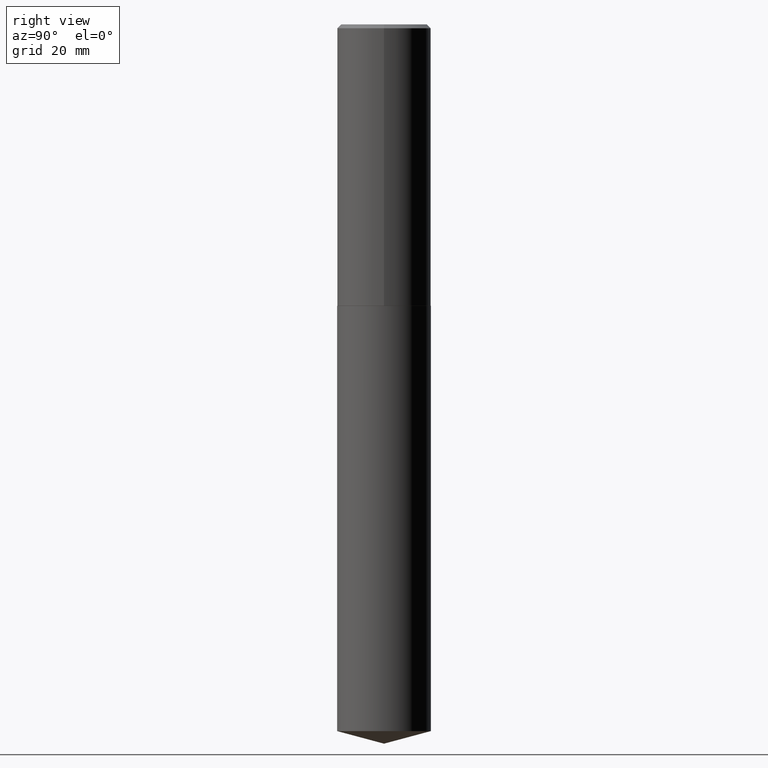
[diagram: clean part render]
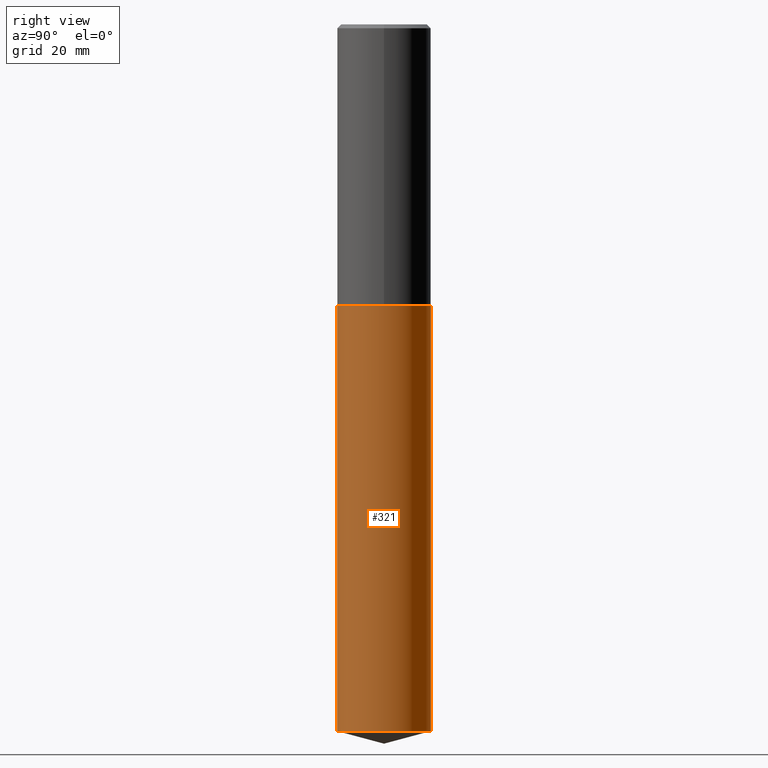
[diagram: same view with one face highlighted and labeled with its STEP entity id]
A machine part, right view. The second image highlights one B-rep face of the part: STEP entity #321.
In plain terms, the highlighted cylindrical surface (partial cylindrical patch) has radius 9.525 mm, axis along (-0, 0, 1).
Its self-contained STEP definition (entity closure, byte-faithful):
#5 = CARTESIAN_POINT ( 'NONE',  ( 1.381670510912354609E-28, -1.972378335700664578E-14, -5.649519052838330779 ) ) ;
#6 = VERTEX_POINT ( 'NONE', #344 ) ;
#7 = VERTEX_POINT ( 'NONE', #148 ) ;
#10 = EDGE_CURVE ( 'NONE', #7, #6, #211, .T. ) ;
#21 = CARTESIAN_POINT ( 'NONE',  ( -2.618611004132295191E-15, -0.3750000000000078826, -2.249999999999998224 ) ) ;
#36 = EDGE_CURVE ( 'NONE', #95, #336, #40, .T. ) ;
#40 = CIRCLE ( 'NONE', #152, 0.3750000000000000555 ) ;
#45 = AXIS2_PLACEMENT_3D ( 'NONE', #279, #247, #118 ) ;
#55 = FACE_OUTER_BOUND ( 'NONE', #159, .T. ) ;
#60 = ORIENTED_EDGE ( 'NONE', *, *, #164, .F. ) ;
#68 = ORIENTED_EDGE ( 'NONE', *, *, #36, .T. ) ;
#95 = VERTEX_POINT ( 'NONE', #284 ) ;
#118 = DIRECTION ( 'NONE',  ( -6.982962677686265922E-15, -1.000000000000000000, 3.642463991552350169E-15 ) ) ;
#122 = DIRECTION ( 'NONE',  ( -2.445757816319670673E-29, 3.491067459881057732E-15, 1.000000000000000000 ) ) ;
#133 = DIRECTION ( 'NONE',  ( -6.982962677686265922E-15, -1.000000000000000000, 2.913971193241880372E-15 ) ) ;
#135 = CARTESIAN_POINT ( 'NONE',  ( 2.664535259100513353E-15, 0.3749999999999801825, -5.649519052838331667 ) ) ;
#148 = CARTESIAN_POINT ( 'NONE',  ( -2.618611004132295191E-15, -0.3750000000000078826, -2.249999999999998224 ) ) ;
#152 = AXIS2_PLACEMENT_3D ( 'NONE', #5, #122, #133 ) ;
#159 = EDGE_LOOP ( 'NONE', ( #68, #356, #308, #60 ) ) ;
#164 = EDGE_CURVE ( 'NONE', #95, #7, #232, .T. ) ;
#170 = DIRECTION ( 'NONE',  ( -2.445757816319670673E-29, 3.491067459881058127E-15, 1.000000000000000000 ) ) ;
#178 = DIRECTION ( 'NONE',  ( -2.445757816319670673E-29, 3.491067459881057732E-15, 1.000000000000000000 ) ) ;
#200 = VECTOR ( 'NONE', #170, 39.37007874015748143 ) ;
#203 = CARTESIAN_POINT ( 'NONE',  ( 5.502304813916556222E-29, -7.855833012397076871E-15, -2.249999999999999556 ) ) ;
#209 = CYLINDRICAL_SURFACE ( 'NONE', #314, 0.3750000000000000555 ) ;
#211 = CIRCLE ( 'NONE', #45, 0.3750000000000000555 ) ;
#232 = LINE ( 'NONE', #21, #313 ) ;
#234 = CARTESIAN_POINT ( 'NONE',  ( 2.664535259100430128E-15, 0.3749999999999921729, -2.250000000000001332 ) ) ;
#247 = DIRECTION ( 'NONE',  ( -2.445757816319670673E-29, 3.491067459881057732E-15, 1.000000000000000000 ) ) ;
#279 = CARTESIAN_POINT ( 'NONE',  ( 5.502304813916556222E-29, -7.855833012397076871E-15, -2.249999999999999556 ) ) ;
#284 = CARTESIAN_POINT ( 'NONE',  ( -2.618611004132210783E-15, -0.3750000000000196509, -5.649519052838329003 ) ) ;
#302 = DIRECTION ( 'NONE',  ( -6.982962677686265922E-15, -1.000000000000000000, 3.642463991552350169E-15 ) ) ;
#308 = ORIENTED_EDGE ( 'NONE', *, *, #10, .F. ) ;
#313 = VECTOR ( 'NONE', #373, 39.37007874015748143 ) ;
#314 = AXIS2_PLACEMENT_3D ( 'NONE', #203, #178, #302 ) ;
#321 = ADVANCED_FACE ( 'NONE', ( #55 ), #209, .T. ) ;
#336 = VERTEX_POINT ( 'NONE', #135 ) ;
#338 = EDGE_CURVE ( 'NONE', #336, #6, #374, .T. ) ;
#344 = CARTESIAN_POINT ( 'NONE',  ( 2.664535259100514142E-15, 0.3749999999999921729, -2.250000000000001332 ) ) ;
#356 = ORIENTED_EDGE ( 'NONE', *, *, #338, .T. ) ;
#373 = DIRECTION ( 'NONE',  ( -2.445757816319670673E-29, 3.491067459881058127E-15, 1.000000000000000000 ) ) ;
#374 = LINE ( 'NONE', #234, #200 ) ;